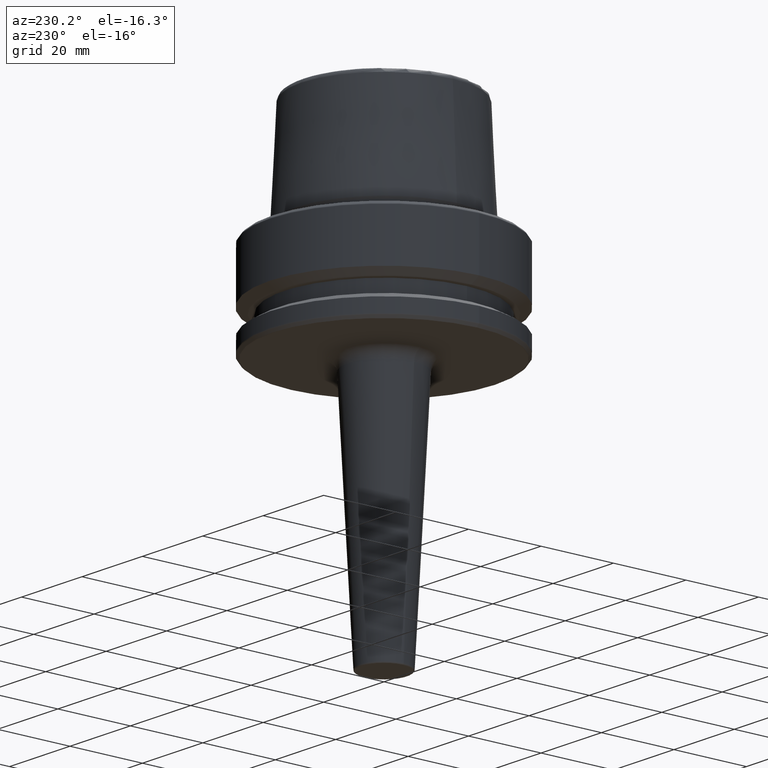
[diagram: clean part render]
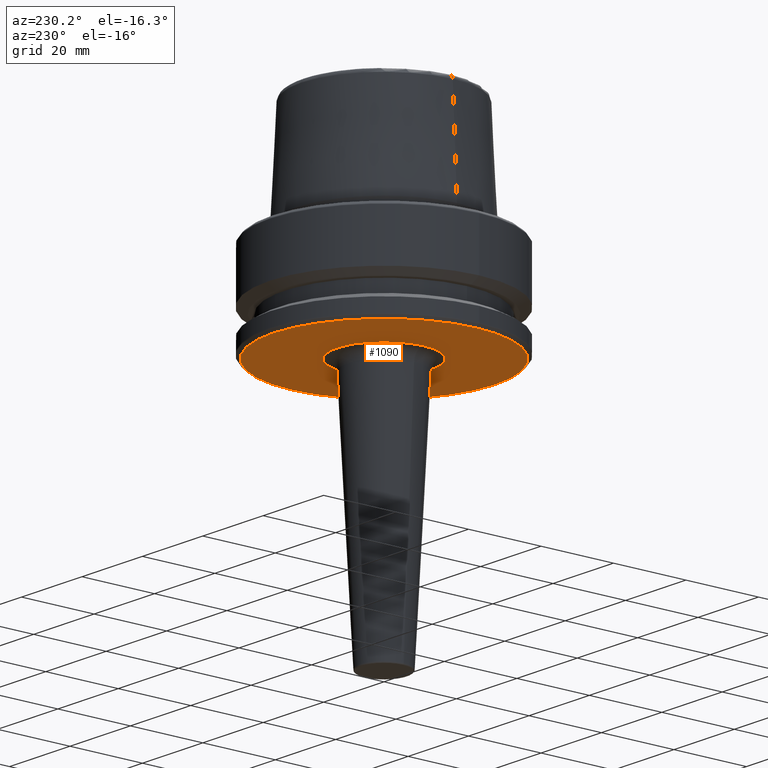
[diagram: same view with one face highlighted and labeled with its STEP entity id]
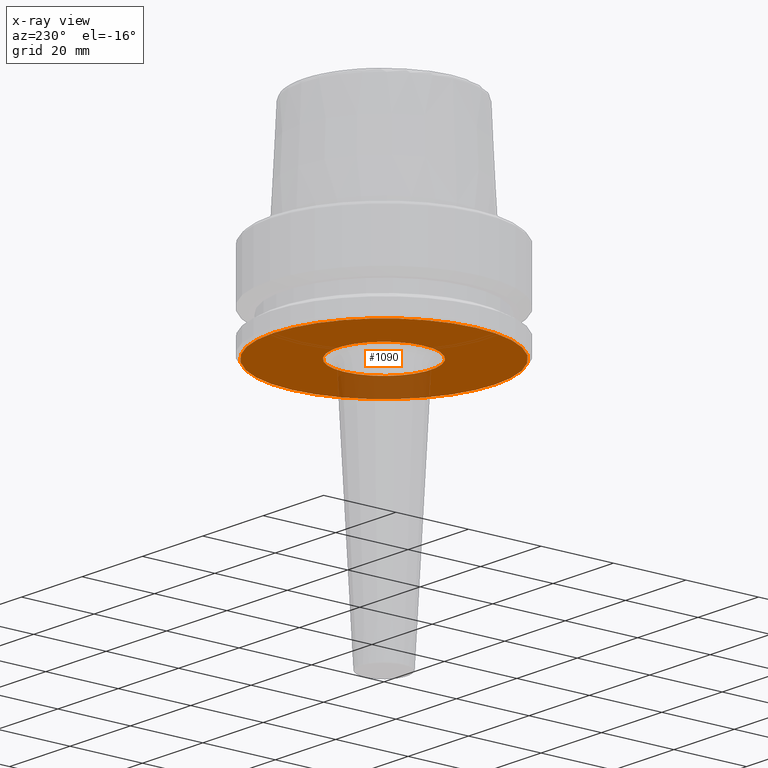
[diagram: x-ray of the same camera — body ghosted, the highlighted face saturated]
A machine part, auxiliary view. The second image highlights one B-rep face of the part: STEP entity #1090.
The next image is the same camera in x-ray: the body ghosted, the highlighted face saturated — about 15% of this face is hidden behind the body in this view.
In plain terms, the highlighted planar face has unit normal (0, -0, 1).
Its self-contained STEP definition (entity closure, byte-faithful):
#3 = DIRECTION ( 'NONE',  ( 1.000000000000000000, 0.0000000000000000000, 0.0000000000000000000 ) ) ;
#42 = AXIS2_PLACEMENT_3D ( 'NONE', #895, #714, #1097 ) ;
#51 = CIRCLE ( 'NONE', #42, 12.96303047067449300 ) ;
#74 = CIRCLE ( 'NONE', #1044, 30.53431457505076800 ) ;
#139 = DIRECTION ( 'NONE',  ( 1.000000000000000000, 0.0000000000000000000, 0.0000000000000000000 ) ) ;
#148 = CARTESIAN_POINT ( 'NONE',  ( 30.53431457505076800, 0.0000000000000000000, -26.00000000000001100 ) ) ;
#161 = AXIS2_PLACEMENT_3D ( 'NONE', #672, #1069, #485 ) ;
#250 = ORIENTED_EDGE ( 'NONE', *, *, #1080, .F. ) ;
#264 = EDGE_CURVE ( 'NONE', #483, #382, #51, .T. ) ;
#285 = FACE_BOUND ( 'NONE', #1212, .T. ) ;
#371 = EDGE_CURVE ( 'NONE', #382, #483, #1208, .T. ) ;
#382 = VERTEX_POINT ( 'NONE', #702 ) ;
#394 = VERTEX_POINT ( 'NONE', #592 ) ;
#414 = AXIS2_PLACEMENT_3D ( 'NONE', #510, #428, #139 ) ;
#428 = DIRECTION ( 'NONE',  ( -0.0000000000000000000, -0.0000000000000000000, 1.000000000000000000 ) ) ;
#472 = DIRECTION ( 'NONE',  ( -0.0000000000000000000, -0.0000000000000000000, 1.000000000000000000 ) ) ;
#476 = FACE_OUTER_BOUND ( 'NONE', #978, .T. ) ;
#483 = VERTEX_POINT ( 'NONE', #808 ) ;
#485 = DIRECTION ( 'NONE',  ( 1.000000000000000000, 0.0000000000000000000, 0.0000000000000000000 ) ) ;
#495 = VERTEX_POINT ( 'NONE', #148 ) ;
#510 = CARTESIAN_POINT ( 'NONE',  ( 0.0000000000000000000, 0.0000000000000000000, -26.00000000000000700 ) ) ;
#577 = DIRECTION ( 'NONE',  ( -0.0000000000000000000, -0.0000000000000000000, 1.000000000000000000 ) ) ;
#592 = CARTESIAN_POINT ( 'NONE',  ( -30.53431457505076800, 3.756694181974139400E-015, -26.00000000000001100 ) ) ;
#613 = ORIENTED_EDGE ( 'NONE', *, *, #371, .T. ) ;
#638 = EDGE_CURVE ( 'NONE', #394, #495, #74, .T. ) ;
#672 = CARTESIAN_POINT ( 'NONE',  ( 0.0000000000000000000, 30.53431457505076800, -26.00000000000000700 ) ) ;
#685 = ORIENTED_EDGE ( 'NONE', *, *, #264, .T. ) ;
#702 = CARTESIAN_POINT ( 'NONE',  ( -12.96303047067449300, 1.587513377316112200E-015, -26.00000000000000400 ) ) ;
#714 = DIRECTION ( 'NONE',  ( -0.0000000000000000000, -0.0000000000000000000, 1.000000000000000000 ) ) ;
#808 = CARTESIAN_POINT ( 'NONE',  ( 12.96303047067449300, 0.0000000000000000000, -26.00000000000000400 ) ) ;
#844 = ORIENTED_EDGE ( 'NONE', *, *, #638, .F. ) ;
#864 = CIRCLE ( 'NONE', #1182, 30.53431457505076800 ) ;
#895 = CARTESIAN_POINT ( 'NONE',  ( 0.0000000000000000000, 0.0000000000000000000, -26.00000000000000700 ) ) ;
#971 = PLANE ( 'NONE',  #161 ) ;
#978 = EDGE_LOOP ( 'NONE', ( #250, #844 ) ) ;
#1044 = AXIS2_PLACEMENT_3D ( 'NONE', #1259, #472, #1052 ) ;
#1052 = DIRECTION ( 'NONE',  ( 1.000000000000000000, 0.0000000000000000000, 0.0000000000000000000 ) ) ;
#1069 = DIRECTION ( 'NONE',  ( 0.0000000000000000000, -0.0000000000000000000, 1.000000000000000000 ) ) ;
#1080 = EDGE_CURVE ( 'NONE', #495, #394, #864, .T. ) ;
#1090 = ADVANCED_FACE ( 'NONE', ( #285, #476 ), #971, .F. ) ;
#1097 = DIRECTION ( 'NONE',  ( 1.000000000000000000, 0.0000000000000000000, 0.0000000000000000000 ) ) ;
#1161 = CARTESIAN_POINT ( 'NONE',  ( 0.0000000000000000000, 0.0000000000000000000, -26.00000000000001100 ) ) ;
#1182 = AXIS2_PLACEMENT_3D ( 'NONE', #1161, #577, #3 ) ;
#1208 = CIRCLE ( 'NONE', #414, 12.96303047067449300 ) ;
#1212 = EDGE_LOOP ( 'NONE', ( #685, #613 ) ) ;
#1259 = CARTESIAN_POINT ( 'NONE',  ( 0.0000000000000000000, 0.0000000000000000000, -26.00000000000001100 ) ) ;